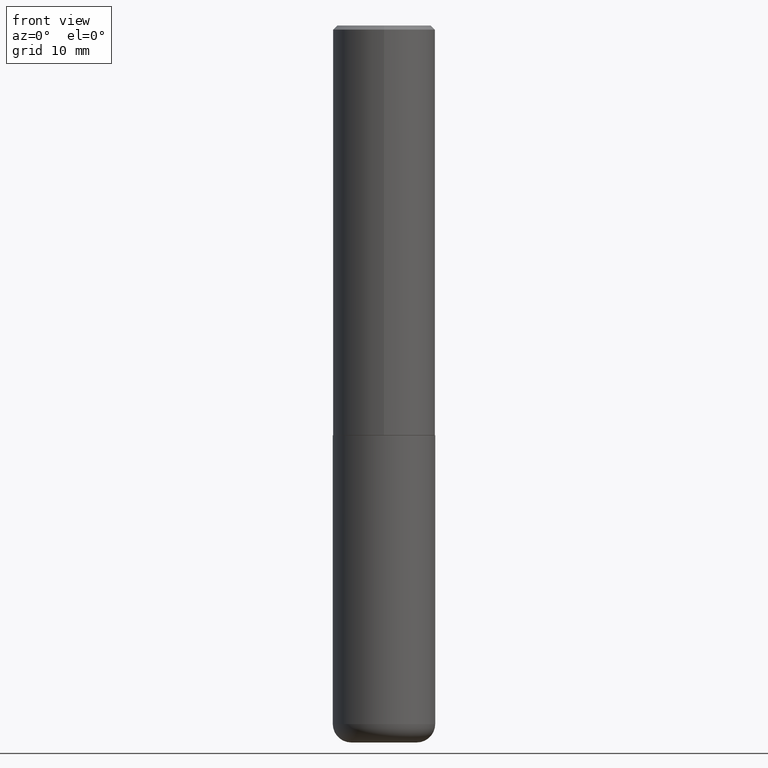
[diagram: clean part render]
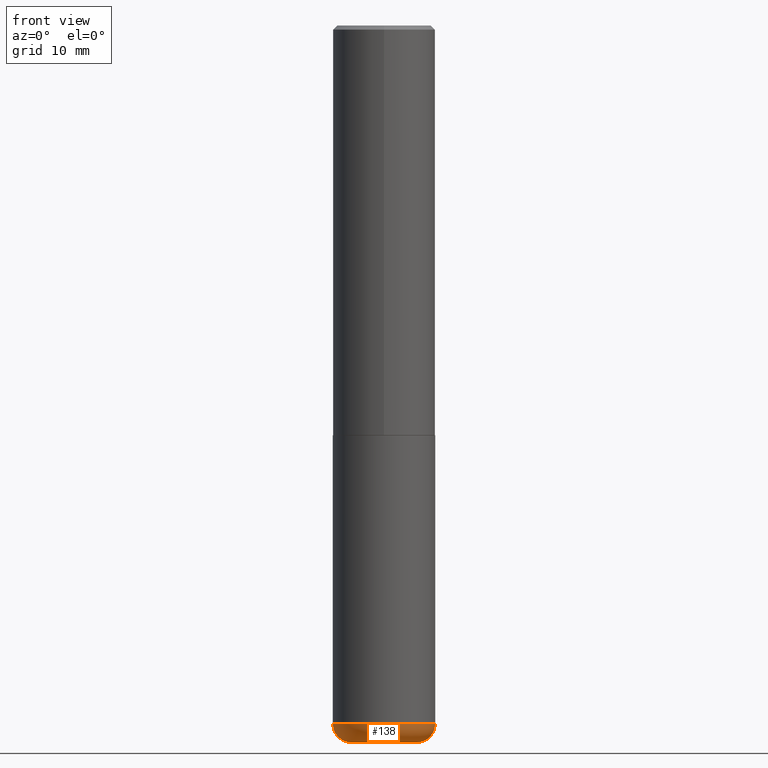
[diagram: same view with one face highlighted and labeled with its STEP entity id]
A machine part, front view. The second image highlights one B-rep face of the part: STEP entity #138.
In plain terms, the highlighted toroidal blend (fillet) surface has major radius 4.064 mm and minor (blend) radius 2.286 mm.
Its self-contained STEP definition (entity closure, byte-faithful):
#18 = FACE_OUTER_BOUND ( 'NONE', #288, .T. ) ;
#26 = CIRCLE ( 'NONE', #62, 0.2500000000000000555 ) ;
#55 = CARTESIAN_POINT ( 'NONE',  ( 8.339048629091315302E-29, -1.190595136545512608E-14, -3.410000000000000142 ) ) ;
#62 = AXIS2_PLACEMENT_3D ( 'NONE', #143, #117, #132 ) ;
#73 = ORIENTED_EDGE ( 'NONE', *, *, #131, .T. ) ;
#74 = CIRCLE ( 'NONE', #175, 0.08999999999999964972 ) ;
#98 = AXIS2_PLACEMENT_3D ( 'NONE', #376, #248, #307 ) ;
#105 = VERTEX_POINT ( 'NONE', #176 ) ;
#117 = DIRECTION ( 'NONE',  ( -2.445468806185136597E-29, 3.491481338843145583E-15, 1.000000000000000000 ) ) ;
#131 = EDGE_CURVE ( 'NONE', #239, #369, #74, .T. ) ;
#132 = DIRECTION ( 'NONE',  ( 1.000000000000000000, -6.982962677686269077E-15, 0.000000000000000000 ) ) ;
#138 = ADVANCED_FACE ( 'NONE', ( #18 ), #304, .T. ) ;
#143 = CARTESIAN_POINT ( 'NONE',  ( 8.339048629091315302E-29, -1.190595136545512608E-14, -3.410000000000000142 ) ) ;
#148 = CARTESIAN_POINT ( 'NONE',  ( 0.2499999999999998612, -1.365169203487669276E-14, -3.410000000000000142 ) ) ;
#175 = AXIS2_PLACEMENT_3D ( 'NONE', #268, #337, #334 ) ;
#176 = CARTESIAN_POINT ( 'NONE',  ( -0.2499999999999998612, -1.012959452605487719E-14, -3.410000000000000142 ) ) ;
#202 = ORIENTED_EDGE ( 'NONE', *, *, #231, .F. ) ;
#205 = DIRECTION ( 'NONE',  ( -2.445468806185136597E-29, 3.491481338843145583E-15, 1.000000000000000000 ) ) ;
#231 = EDGE_CURVE ( 'NONE', #371, #105, #354, .T. ) ;
#235 = CARTESIAN_POINT ( 'NONE',  ( 8.559140821647976968E-29, -1.222018468595100619E-14, -3.499999999999999112 ) ) ;
#239 = VERTEX_POINT ( 'NONE', #383 ) ;
#248 = DIRECTION ( 'NONE',  ( 7.105427357601001859E-15, 1.000000000000000000, -3.491481338843145583E-15 ) ) ;
#268 = CARTESIAN_POINT ( 'NONE',  ( 0.1600000000000000033, -1.302322539388492780E-14, -3.410000000000000142 ) ) ;
#288 = EDGE_LOOP ( 'NONE', ( #202, #363, #73, #332 ) ) ;
#290 = CIRCLE ( 'NONE', #392, 0.1600000000000000033 ) ;
#301 = CARTESIAN_POINT ( 'NONE',  ( -0.1600000000000000033, -1.060645541739486182E-14, -3.499999999999999112 ) ) ;
#304 = TOROIDAL_SURFACE ( 'NONE', #339, 0.1600000000000000033, 0.08999999999999967748 ) ;
#307 = DIRECTION ( 'NONE',  ( -1.000000000000000000, 7.105427357600996337E-15, 0.000000000000000000 ) ) ;
#332 = ORIENTED_EDGE ( 'NONE', *, *, #351, .F. ) ;
#334 = DIRECTION ( 'NONE',  ( 1.000000000000000000, -6.982962677686273810E-15, 0.000000000000000000 ) ) ;
#337 = DIRECTION ( 'NONE',  ( -6.982962677686266711E-15, -1.000000000000000000, 3.491481338843145583E-15 ) ) ;
#339 = AXIS2_PLACEMENT_3D ( 'NONE', #55, #373, #397 ) ;
#351 = EDGE_CURVE ( 'NONE', #105, #369, #26, .T. ) ;
#354 = CIRCLE ( 'NONE', #98, 0.08999999999999964972 ) ;
#363 = ORIENTED_EDGE ( 'NONE', *, *, #402, .T. ) ;
#365 = DIRECTION ( 'NONE',  ( 1.000000000000000000, -6.982962677686259611E-15, 0.000000000000000000 ) ) ;
#369 = VERTEX_POINT ( 'NONE', #148 ) ;
#371 = VERTEX_POINT ( 'NONE', #301 ) ;
#373 = DIRECTION ( 'NONE',  ( -2.445468806185136597E-29, 3.491481338843145583E-15, 1.000000000000000000 ) ) ;
#376 = CARTESIAN_POINT ( 'NONE',  ( -0.1600000000000000033, -1.076908298823896635E-14, -3.410000000000000142 ) ) ;
#383 = CARTESIAN_POINT ( 'NONE',  ( 0.1600000000000000033, -1.333745871438080791E-14, -3.499999999999999112 ) ) ;
#392 = AXIS2_PLACEMENT_3D ( 'NONE', #235, #205, #365 ) ;
#397 = DIRECTION ( 'NONE',  ( 1.000000000000000000, -6.982962677686265133E-15, 4.883557194083112340E-29 ) ) ;
#402 = EDGE_CURVE ( 'NONE', #371, #239, #290, .T. ) ;